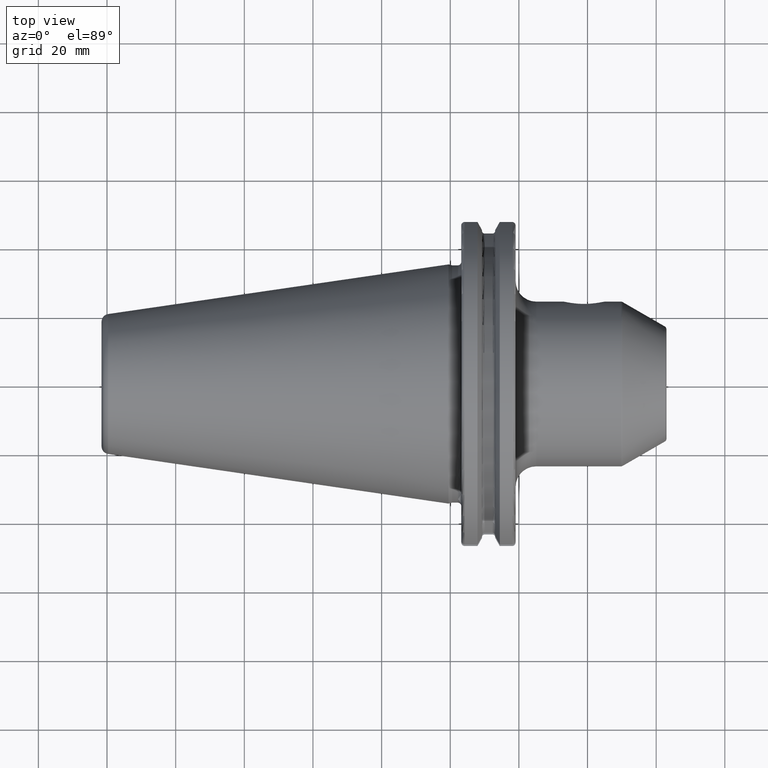
[diagram: clean part render]
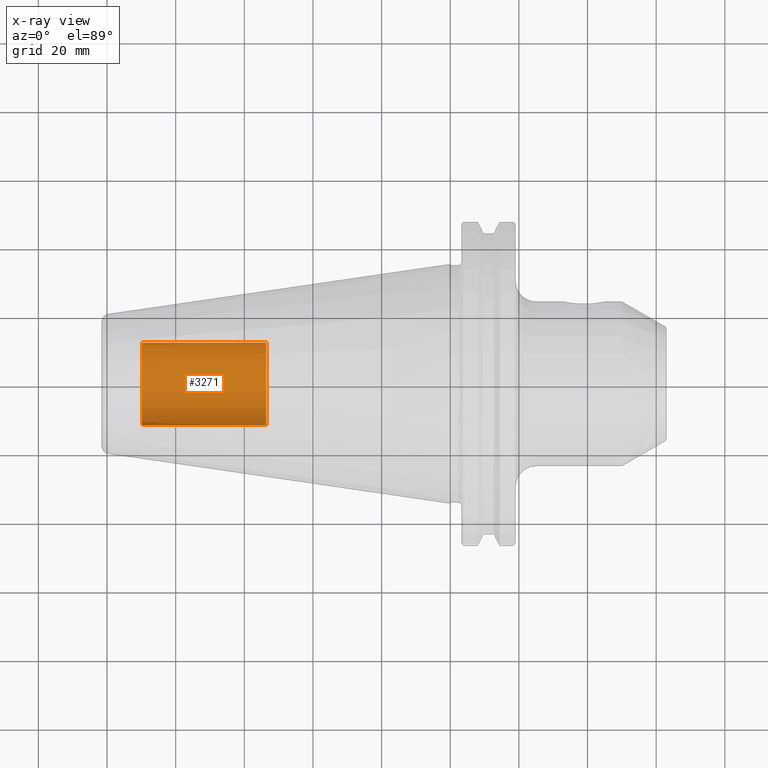
[diagram: x-ray — body ghosted, one internal face saturated and labeled with its STEP entity id]
A machine part, top view, then the same camera in x-ray: the body is ghosted and one INTERNAL B-rep face — a face not visible from any outside direction — is saturated and labeled: STEP entity #3271.
In plain terms, the highlighted cylindrical surface (partial cylindrical patch) has radius 12.0032 mm, axis along (1, 0, 0).
Its self-contained STEP definition (entity closure, byte-faithful):
#3206=CARTESIAN_POINT('',(-8.985E1,0.E0,0.E0));
#3207=DIRECTION('',(-1.E0,0.E0,0.E0));
#3208=DIRECTION('',(0.E0,1.E0,0.E0));
#3209=AXIS2_PLACEMENT_3D('',#3206,#3207,#3208);
#3211=DIRECTION('',(1.E0,0.E0,0.E0));
#3212=VECTOR('',#3211,3.625E1);
#3213=CARTESIAN_POINT('',(-8.985E1,-1.200325E1,0.E0));
#3214=LINE('',#3213,#3212);
#3220=DIRECTION('',(1.E0,0.E0,0.E0));
#3221=VECTOR('',#3220,3.625E1);
#3222=CARTESIAN_POINT('',(-8.985E1,1.200325E1,0.E0));
#3223=LINE('',#3222,#3221);
#3229=CARTESIAN_POINT('',(-5.36E1,0.E0,0.E0));
#3230=DIRECTION('',(1.E0,0.E0,0.E0));
#3231=DIRECTION('',(0.E0,-1.E0,0.E0));
#3232=AXIS2_PLACEMENT_3D('',#3229,#3230,#3231);
#3244=CARTESIAN_POINT('',(-8.985E1,1.200325E1,0.E0));
#3245=CARTESIAN_POINT('',(-8.985E1,-1.200325E1,0.E0));
#3246=VERTEX_POINT('',#3244);
#3247=VERTEX_POINT('',#3245);
#3248=CARTESIAN_POINT('',(-5.36E1,1.200325E1,0.E0));
#3249=CARTESIAN_POINT('',(-5.36E1,-1.200325E1,0.E0));
#3250=VERTEX_POINT('',#3248);
#3251=VERTEX_POINT('',#3249);
#3256=CARTESIAN_POINT('',(-8.985E1,0.E0,0.E0));
#3257=DIRECTION('',(1.E0,0.E0,0.E0));
#3258=DIRECTION('',(0.E0,1.E0,0.E0));
#3259=AXIS2_PLACEMENT_3D('',#3256,#3257,#3258);
#3260=CYLINDRICAL_SURFACE('',#3259,1.200325E1);
#3262=ORIENTED_EDGE('',*,*,#3261,.T.);
#3264=ORIENTED_EDGE('',*,*,#3263,.T.);
#3266=ORIENTED_EDGE('',*,*,#3265,.T.);
#3268=ORIENTED_EDGE('',*,*,#3267,.F.);
#3269=EDGE_LOOP('',(#3262,#3264,#3266,#3268));
#3270=FACE_OUTER_BOUND('',#3269,.F.);
#3271=ADVANCED_FACE('',(#3270),#3260,.T.);
#3210=CIRCLE('',#3209,1.200325E1);
#3233=CIRCLE('',#3232,1.200325E1);
#3261=EDGE_CURVE('',#3246,#3247,#3210,.T.);
#3263=EDGE_CURVE('',#3247,#3251,#3214,.T.);
#3265=EDGE_CURVE('',#3251,#3250,#3233,.T.);
#3267=EDGE_CURVE('',#3246,#3250,#3223,.T.);